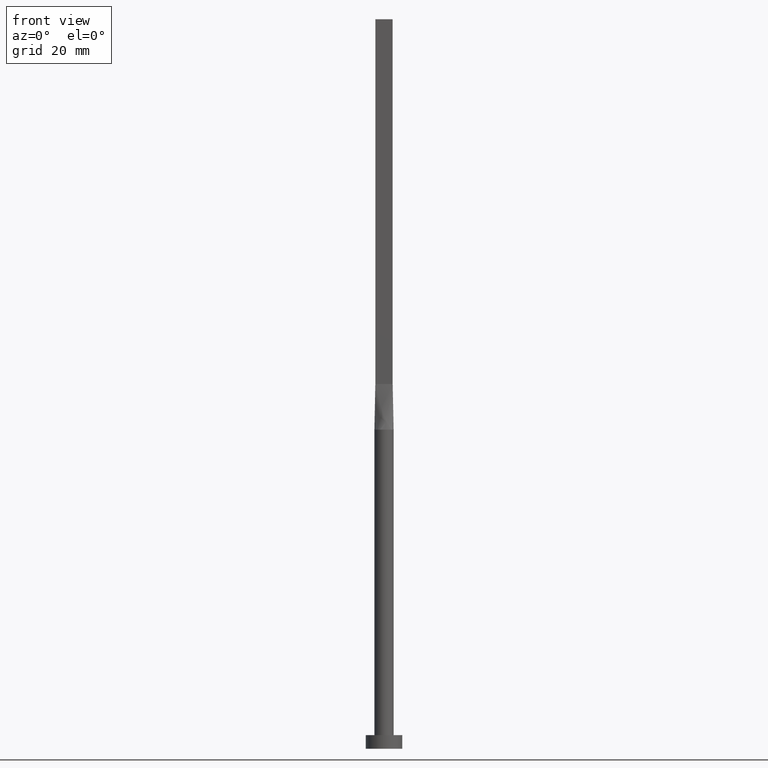
[diagram: clean part render]
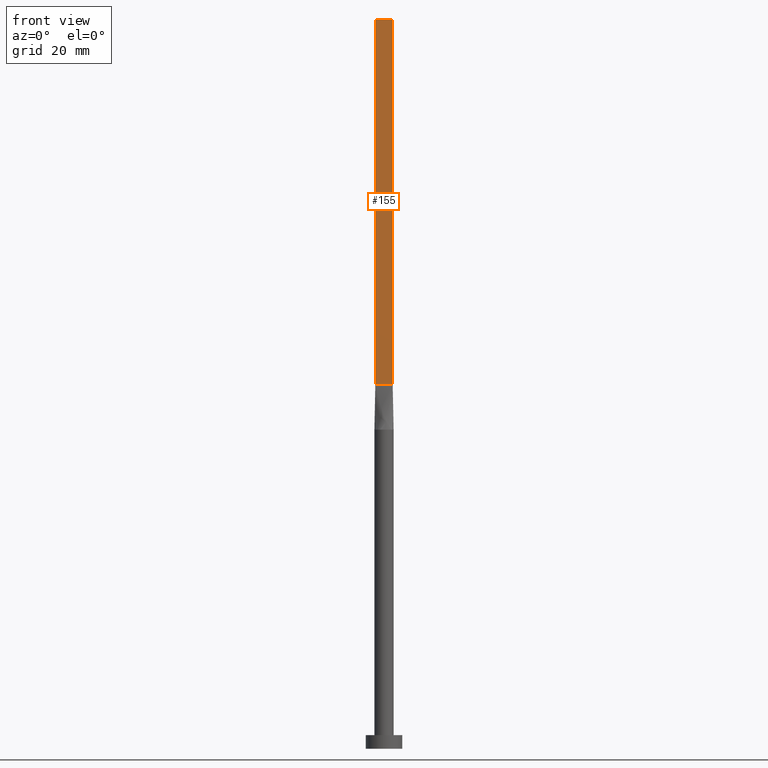
[diagram: same view with one face highlighted and labeled with its STEP entity id]
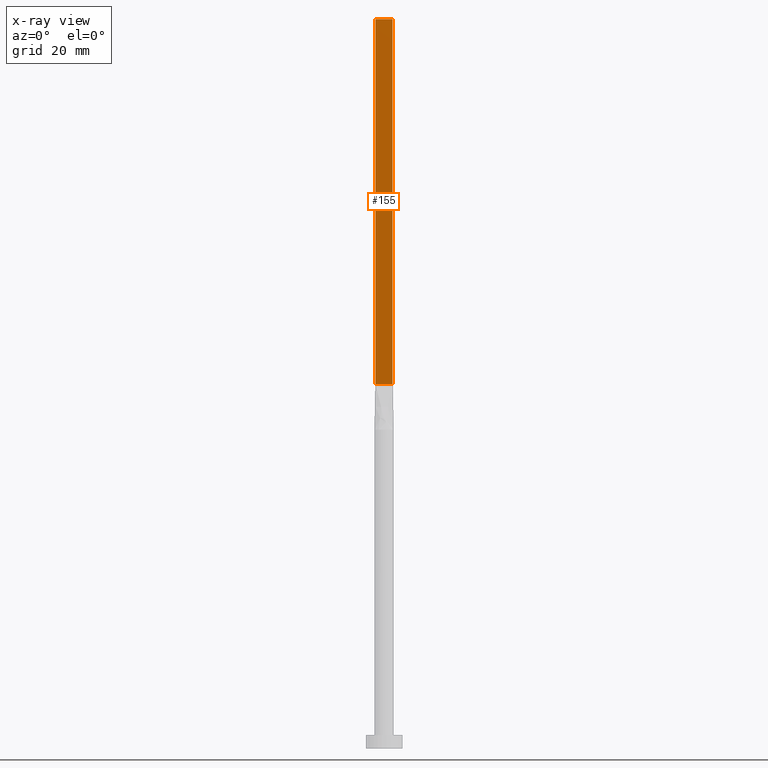
[diagram: x-ray of the same camera — body ghosted, the highlighted face saturated]
A machine part, front view. The second image highlights one B-rep face of the part: STEP entity #155.
The next image is the same camera in x-ray: the body ghosted, the highlighted face saturated — about 0% of this face is hidden behind the body in this view.
In plain terms, the highlighted planar face has unit normal (0, 1, -0).
Its self-contained STEP definition (entity closure, byte-faithful):
#2 = DIRECTION ( 'NONE',  ( -1.000000000000000000, 5.706327223607918787E-17, 0.000000000000000000 ) ) ;
#22 = CARTESIAN_POINT ( 'NONE',  ( -1.899999999999999911, -0.5999999999999995337, 80.00000000000000000 ) ) ;
#28 = PLANE ( 'NONE',  #89 ) ;
#41 = VERTEX_POINT ( 'NONE', #59 ) ;
#46 = ORIENTED_EDGE ( 'NONE', *, *, #551, .F. ) ;
#59 = CARTESIAN_POINT ( 'NONE',  ( -1.899999999999999911, -0.5999999999999995337, 160.0000000000000000 ) ) ;
#84 = CARTESIAN_POINT ( 'NONE',  ( 1.899999999999999023, -0.5999999999999997558, 160.0000000000000000 ) ) ;
#89 = AXIS2_PLACEMENT_3D ( 'NONE', #208, #532, #2 ) ;
#147 = LINE ( 'NONE', #373, #366 ) ;
#155 = ADVANCED_FACE ( 'NONE', ( #437 ), #28, .F. ) ;
#159 = ORIENTED_EDGE ( 'NONE', *, *, #406, .F. ) ;
#166 = ORIENTED_EDGE ( 'NONE', *, *, #508, .T. ) ;
#172 = CARTESIAN_POINT ( 'NONE',  ( -1.899999999999999911, -0.5999999999999995337, 80.00000000000000000 ) ) ;
#186 = VECTOR ( 'NONE', #408, 1000.000000000000000 ) ;
#208 = CARTESIAN_POINT ( 'NONE',  ( -1.899999999999999911, -0.5999999999999995337, 160.0000000000000000 ) ) ;
#255 = EDGE_CURVE ( 'NONE', #572, #405, #419, .T. ) ;
#316 = CARTESIAN_POINT ( 'NONE',  ( 1.899999999999999023, -0.5999999999999997558, 80.00000000000000000 ) ) ;
#318 = VECTOR ( 'NONE', #492, 1000.000000000000000 ) ;
#326 = ORIENTED_EDGE ( 'NONE', *, *, #255, .T. ) ;
#348 = LINE ( 'NONE', #447, #318 ) ;
#353 = LINE ( 'NONE', #84, #186 ) ;
#366 = VECTOR ( 'NONE', #476, 1000.000000000000000 ) ;
#373 = CARTESIAN_POINT ( 'NONE',  ( -1.899999999999999911, -0.5999999999999995337, 160.0000000000000000 ) ) ;
#403 = EDGE_LOOP ( 'NONE', ( #326, #46, #159, #166 ) ) ;
#405 = VERTEX_POINT ( 'NONE', #316 ) ;
#406 = EDGE_CURVE ( 'NONE', #41, #534, #147, .T. ) ;
#408 = DIRECTION ( 'NONE',  ( -0.000000000000000000, -0.000000000000000000, -1.000000000000000000 ) ) ;
#419 = LINE ( 'NONE', #22, #440 ) ;
#437 = FACE_OUTER_BOUND ( 'NONE', #403, .T. ) ;
#440 = VECTOR ( 'NONE', #550, 1000.000000000000000 ) ;
#447 = CARTESIAN_POINT ( 'NONE',  ( -1.899999999999999911, -0.5999999999999995337, 160.0000000000000000 ) ) ;
#476 = DIRECTION ( 'NONE',  ( 1.000000000000000000, -5.706327223607920020E-17, 0.000000000000000000 ) ) ;
#478 = CARTESIAN_POINT ( 'NONE',  ( 1.899999999999999023, -0.5999999999999997558, 160.0000000000000000 ) ) ;
#492 = DIRECTION ( 'NONE',  ( -0.000000000000000000, -0.000000000000000000, -1.000000000000000000 ) ) ;
#508 = EDGE_CURVE ( 'NONE', #41, #572, #348, .T. ) ;
#532 = DIRECTION ( 'NONE',  ( 5.706327223607918787E-17, 1.000000000000000000, -0.000000000000000000 ) ) ;
#534 = VERTEX_POINT ( 'NONE', #478 ) ;
#550 = DIRECTION ( 'NONE',  ( 1.000000000000000000, -5.706327223607918787E-17, 0.000000000000000000 ) ) ;
#551 = EDGE_CURVE ( 'NONE', #534, #405, #353, .T. ) ;
#572 = VERTEX_POINT ( 'NONE', #172 ) ;